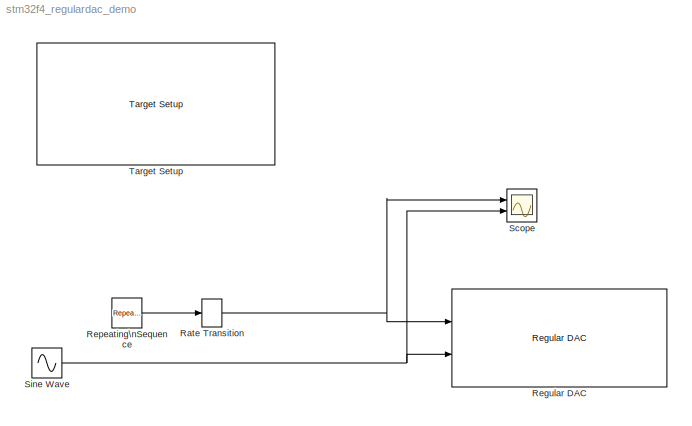
MODEL stm32f4_regulardac_demo
KIND model
CONFIG PreLoadFcn = waijung.modelPreload; % Required for working with Waijung Blockset. Do not remove.
BLOCK [RateTransition] Rate Transition
BLOCK [Reference] Regular DAC  REF=stm32f4_dac_lib/Regular DAC
  Ports = [2]
  SourceBlock = stm32f4_dac_lib/Regular DAC
  SourceType = stm32f4_regulardac
  advancedsettings = off
  apb = 1
  blockid = RegularDAC
  chmat = [1  2]
  cinputportlabel = Signal1, Signal2
  coutputportlabel = 0
  dac1on = on
  dac2on = on
  dacaddress = 40007420
  dacalignment = DAC_Align_12b_R
  dacbuffer = Enable
  dacbufferstr = DAC_OutputBuffer_Enable
  dacmode = DAC1_2
  enablecustomportlabel = off
  inputtype = Volts (double)
  inputtypestr = Volts
  pinmat = [2 4 5]
  pinstr = [\"GPIO_Pin_4 | GPIO_Pin_5\"]
  portpinstr = A4,A5
  portstr = [\"A\"]
  sampletime = -1
  vref = 3.3
BLOCK [Reference] Repeating\nSequence  REF=simulink/Sources/Repeating\nSequence
  FunctionWithSeparateData = off
  Ports = [0, 1]
  RTWMemSecDataConstants = Inherit from model
  RTWMemSecDataInternal = Inherit from model
  RTWMemSecDataParameters = Inherit from model
  RTWMemSecFuncExecute = Inherit from model
  RTWMemSecFuncInitTerm = Inherit from model
  ShowPortLabels = FromPortIcon
  SourceBlock = simulink/Sources/Repeating\nSequence
  SourceType = Repeating table
  SystemSampleTime = -1
  rep_seq_t = [0 0.001]
  rep_seq_y = [0 2]
BLOCK [Scope] Scope
  DataFormat = StructureWithTime
  Floating = off
  NumInputPorts = 2
  Ports = [2]
  SampleTime = 0
  YMax = 2.2~2.6
  YMin = -0.1~0.4
BLOCK [Sin] Sine Wave
  Amplitude = 1
  Bias = 1.5
  Frequency = 2*pi*1000
  Offset = 0
  Phase = 0
  Ports = [0, 1]
  SampleTime = 1/(1000*20)
  Samples = 10
BLOCK [Reference] Target Setup  REF=stm32f4_device_config_lib/Target Setup
  Ports = []
  Priority = 100
  SourceBlock = stm32f4_device_config_lib/Target Setup
  SourceType = stm32f4_target_setup
  assemblercontrolstr = $(patsubst %, -I%, .) -mcpu=cortex-m4 -mthumb -mthumb-interwork -mfloat-abi=hard -mfpu=fpv4-sp-d16 -ffast-math -Wall -Wextra -Ofast -Wa,-amhls=$(<:.s=.lst) -D__STACK_SIZE=$(STACK_SIZE) -D__HEAP_SIZE=$(HEAP_SIZE)
  blockid = TargetSetup
  clockconfig = HSEOSC-8MHz
  compiler = GNU ARM
  compilercontrolstr = $(patsubst %, -I%, .) -mcpu=cortex-m4 -mthumb -mthumb-interwork -mfloat-abi=hard -mfpu=fpv4-sp-d16 -ffast-math -Wall -Wextra -Ofast
  editctrlstr = on
  enableautocompiledownload = on
  execprofile = None
  flashlength = 1024k
  flashorigin = 0x8000000
  fullchiperase = off
  hclk = 168000000
  heapsize = 0x200
  hseval = 8000000
  lastprofileruart = 1
  linkercontrolstr = -T$(LD_SCRIPT) -g -Wl,-Map=$(MAP),--cref,--no-warn-mismatch -mcpu=cortex-m4 -mthumb -mthumb-interwork -mfloat-abi=hard -mfpu=fpv4-sp-d16 -specs=nosys.specs
  manualsetsampletime = off
  mcu = STM32F417IG (LQFP176)
  mcustr = STM32F417IG
  previous_compiler = GNU ARM
  profilerbaud = 115200
  profilerinitstr = 1e-005,168000000,1680,115200,0
  profilertxpin = D8
  profileruart = 1
  programmerinterface = ST-Link
  ramlength = 128k
  ramorigin = 0x20000000
  runafterdownload = on
  sampletime = 1e-005
  showmemoryconfiguration = off
  stacksize = 0x400
  system_stm32f4xx_c_path = <path>
  systickreloadvalue = 1680
  useextram = off
NET Rate Transition:1 -> Regular DAC:1, Scope:1
LINE Repeating\nSequence:1 -> Rate Transition:1
NET Sine Wave:1 -> Regular DAC:2, Scope:2
note: NET lines group one-source signal fan-out (src -> all destinations, sorted); 1:1 wires keep LINE
note: 1 file-system path scrubbed to <path> (not preserved elsewhere — flat text is the only slx artifact)
